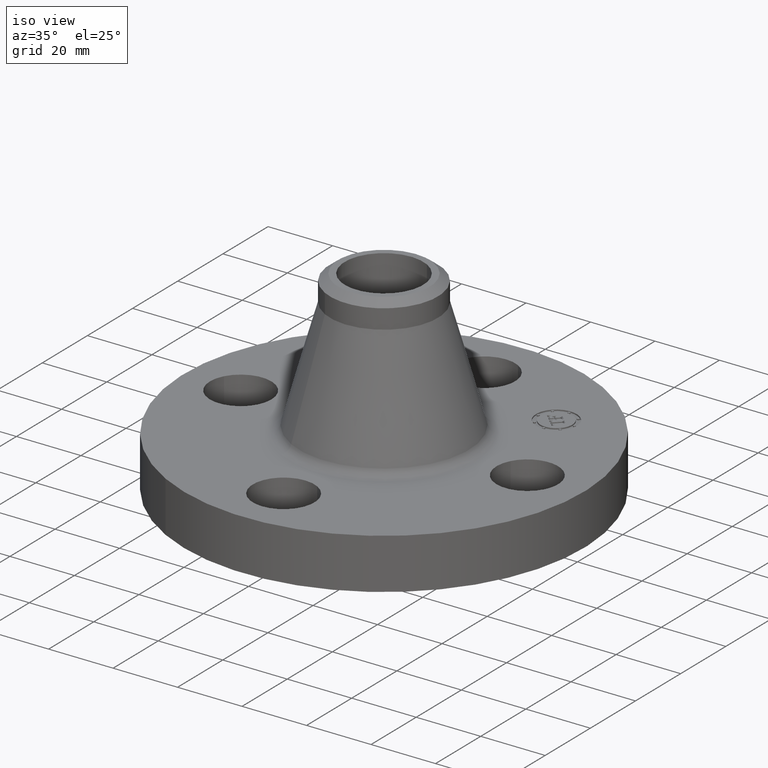
[diagram: clean part render]
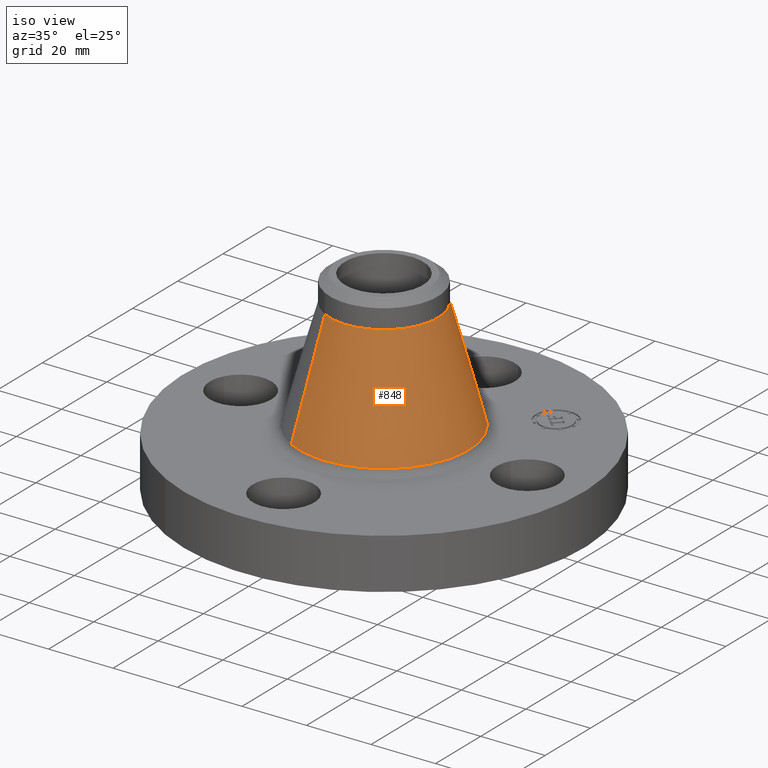
[diagram: same view with one face highlighted and labeled with its STEP entity id]
A machine part, iso view. The second image highlights one B-rep face of the part: STEP entity #848.
In plain terms, the highlighted conical surface has half-angle 15.474 deg.
Its self-contained STEP definition (entity closure, byte-faithful):
#667=AXIS2_PLACEMENT_3D('Circle Axis2P3D',#665,#666,$) ;
#835=AXIS2_PLACEMENT_3D('Cone Axis2P3D',#832,#833,#834) ;
#839=AXIS2_PLACEMENT_3D('Circle Axis2P3D',#837,#838,$) ;
#631=CARTESIAN_POINT('Vertex',(-0.496513817097,-0.908862445855,0.707984487806)) ;
#638=CARTESIAN_POINT('Vertex',(0.496513817097,0.908862445855,0.707984487807)) ;
#665=CARTESIAN_POINT('Axis2P3D Location',(0.,0.,0.707984487807)) ;
#799=CARTESIAN_POINT('Line Origine',(-0.406467336287,-0.74403346835,1.38645680746)) ;
#803=CARTESIAN_POINT('Vertex',(-0.31642085548,-0.57920449085,2.06492912712)) ;
#810=CARTESIAN_POINT('Vertex',(0.31642085548,0.57920449085,2.06492912712)) ;
#813=CARTESIAN_POINT('Line Origine',(0.406467336287,0.74403346835,1.38645680746)) ;
#832=CARTESIAN_POINT('Axis2P3D Location',(0.,0.,2.06492912712)) ;
#837=CARTESIAN_POINT('Axis2P3D Location',(0.,0.,2.06492912712)) ;
#666=DIRECTION('Axis2P3D Direction',(-0.,0.,-0.0393700787402)) ;
#800=DIRECTION('Vector Direction',(-0.0050357789301,-0.0092179315008,-0.0379430332132)) ;
#814=DIRECTION('Vector Direction',(0.0050357789301,0.0092179315008,-0.0379430332132)) ;
#833=DIRECTION('Axis2P3D Direction',(0.,0.,-0.0393700787402)) ;
#834=DIRECTION('Axis2P3D XDirection',(0.0188750212049,0.0345504945626,0.)) ;
#838=DIRECTION('Axis2P3D Direction',(-0.,0.,-0.0393700787402)) ;
#801=VECTOR('Line Direction',#800,0.0393700787402) ;
#815=VECTOR('Line Direction',#814,0.0393700787402) ;
#843=ORIENTED_EDGE('',*,*,#669,.F.) ;
#844=ORIENTED_EDGE('',*,*,#817,.T.) ;
#845=ORIENTED_EDGE('',*,*,#841,.T.) ;
#846=ORIENTED_EDGE('',*,*,#805,.F.) ;
#848=ADVANCED_FACE('PartBody',(#847),#836,.T.) ;
#668=CIRCLE('generated circle',#667,1.03564323783) ;
#840=CIRCLE('generated circle',#839,0.660000000003) ;
#836=CONICAL_SURFACE('Cone',#835,0.660000000003,0.270066923464) ;
#669=EDGE_CURVE('',#639,#632,#668,.T.) ;
#805=EDGE_CURVE('',#632,#804,#802,.F.) ;
#817=EDGE_CURVE('',#639,#811,#816,.F.) ;
#841=EDGE_CURVE('',#811,#804,#840,.T.) ;
#842=EDGE_LOOP('',(#843,#844,#845,#846)) ;
#847=FACE_OUTER_BOUND('',#842,.T.) ;
#802=LINE('Line',#799,#801) ;
#816=LINE('Line',#813,#815) ;
#632=VERTEX_POINT('',#631) ;
#639=VERTEX_POINT('',#638) ;
#804=VERTEX_POINT('',#803) ;
#811=VERTEX_POINT('',#810) ;